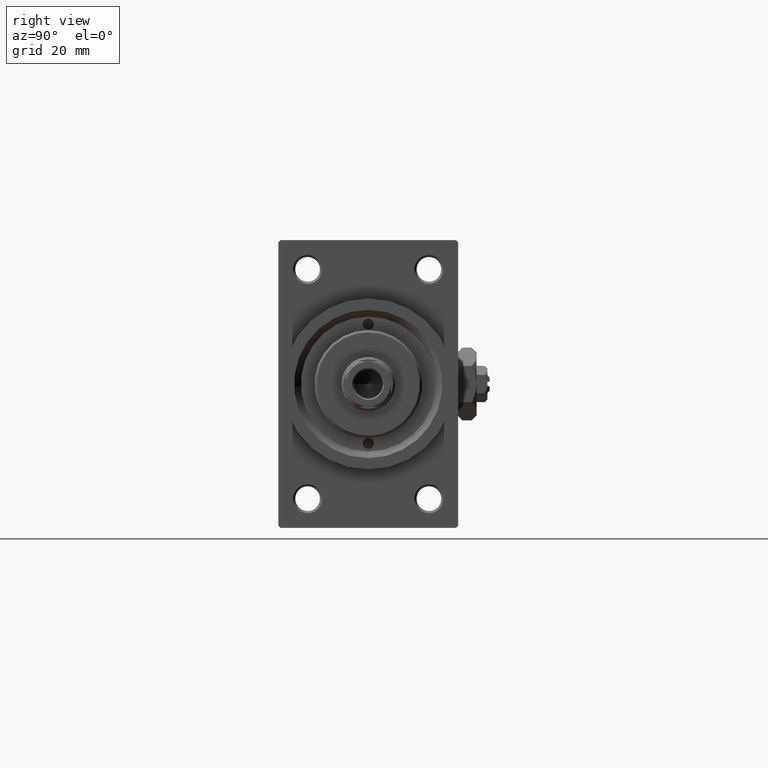
[diagram: clean part render]
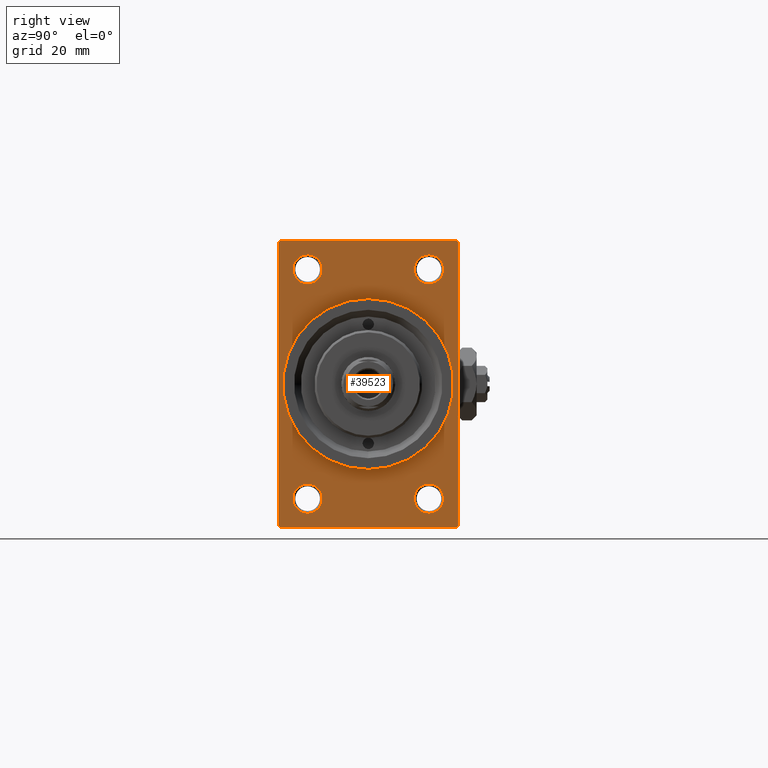
[diagram: same view with one face highlighted and labeled with its STEP entity id]
A machine part, right view. The second image highlights one B-rep face of the part: STEP entity #39523.
In plain terms, the highlighted planar face has unit normal (-1, 0, 0).
Its self-contained STEP definition (entity closure, byte-faithful):
#495 = CARTESIAN_POINT ( 'NONE',  ( 109.0000000000000142, -13.50000000000000533, -25.49999999999999645 ) ) ;
#780 = CARTESIAN_POINT ( 'NONE',  ( 109.0000000000000142, -20.00000000000000000, 31.49999999999997868 ) ) ;
#1149 = FACE_BOUND ( 'NONE', #3359, .T. ) ;
#1211 = DIRECTION ( 'NONE',  ( 0.000000000000000000, 0.000000000000000000, 1.000000000000000000 ) ) ;
#1253 = VERTEX_POINT ( 'NONE', #26808 ) ;
#1257 = DIRECTION ( 'NONE',  ( -0.000000000000000000, -0.7071067811865474617, -0.7071067811865474617 ) ) ;
#1570 = CARTESIAN_POINT ( 'NONE',  ( 109.0000000000000142, 20.00000000000000000, -31.49999999999998579 ) ) ;
#1646 = FACE_BOUND ( 'NONE', #1921, .T. ) ;
#1709 = ORIENTED_EDGE ( 'NONE', *, *, #5291, .T. ) ;
#1921 = EDGE_LOOP ( 'NONE', ( #14061, #37975 ) ) ;
#2263 = CARTESIAN_POINT ( 'NONE',  ( 109.0000000000000142, -13.50000000000000178, 28.75000000000000355 ) ) ;
#2301 = DIRECTION ( 'NONE',  ( 0.000000000000000000, -1.000000000000000000, -1.734723475976807094E-16 ) ) ;
#2542 = CARTESIAN_POINT ( 'NONE',  ( 109.0000000000000142, 20.00000000000000000, 32.00000000000000000 ) ) ;
#2822 = DIRECTION ( 'NONE',  ( 0.000000000000000000, 0.000000000000000000, -1.000000000000000000 ) ) ;
#3010 = VERTEX_POINT ( 'NONE', #25151 ) ;
#3359 = EDGE_LOOP ( 'NONE', ( #35891, #11153 ) ) ;
#3710 = VECTOR ( 'NONE', #24608, 1000.000000000000114 ) ;
#3742 = AXIS2_PLACEMENT_3D ( 'NONE', #9062, #31853, #46703 ) ;
#3777 = DIRECTION ( 'NONE',  ( -1.000000000000000000, -0.000000000000000000, -0.000000000000000000 ) ) ;
#4741 = AXIS2_PLACEMENT_3D ( 'NONE', #33901, #48736, #26740 ) ;
#4804 = EDGE_CURVE ( 'NONE', #37035, #16034, #15046, .T. ) ;
#5291 = EDGE_CURVE ( 'NONE', #42942, #32219, #40685, .T. ) ;
#5347 = VERTEX_POINT ( 'NONE', #44399 ) ;
#5597 = PLANE ( 'NONE',  #3742 ) ;
#5657 = AXIS2_PLACEMENT_3D ( 'NONE', #495, #45566, #1211 ) ;
#5681 = CIRCLE ( 'NONE', #29418, 19.00000000000000000 ) ;
#5807 = CARTESIAN_POINT ( 'NONE',  ( 109.0000000000000142, -20.00000000000000000, 31.99999999999999289 ) ) ;
#6150 = CARTESIAN_POINT ( 'NONE',  ( 109.0000000000000142, 20.00000000000000000, 31.49999999999998579 ) ) ;
#6286 = DIRECTION ( 'NONE',  ( 0.000000000000000000, 0.000000000000000000, -1.000000000000000000 ) ) ;
#6704 = CARTESIAN_POINT ( 'NONE',  ( 109.0000000000000142, 19.49999999999998579, 32.00000000000000000 ) ) ;
#7283 = AXIS2_PLACEMENT_3D ( 'NONE', #36686, #29501, #14139 ) ;
#7382 = ORIENTED_EDGE ( 'NONE', *, *, #9825, .T. ) ;
#7537 = CARTESIAN_POINT ( 'NONE',  ( 109.0000000000000142, -19.49999999999998579, 31.99999999999999289 ) ) ;
#7579 = DIRECTION ( 'NONE',  ( 0.000000000000000000, 0.000000000000000000, 1.000000000000000000 ) ) ;
#7994 = EDGE_CURVE ( 'NONE', #35808, #36756, #48987, .T. ) ;
#8006 = VERTEX_POINT ( 'NONE', #6704 ) ;
#9007 = VECTOR ( 'NONE', #21384, 1000.000000000000114 ) ;
#9062 = CARTESIAN_POINT ( 'NONE',  ( 109.0000000000000142, 0.000000000000000000, 0.000000000000000000 ) ) ;
#9259 = EDGE_CURVE ( 'NONE', #16360, #32219, #27095, .T. ) ;
#9376 = AXIS2_PLACEMENT_3D ( 'NONE', #44592, #37173, #25540 ) ;
#9781 = ORIENTED_EDGE ( 'NONE', *, *, #13012, .F. ) ;
#9798 = EDGE_LOOP ( 'NONE', ( #33362, #1709, #40323, #40582, #39390, #36260, #27277, #39252 ) ) ;
#9825 = EDGE_CURVE ( 'NONE', #13416, #28753, #18998, .T. ) ;
#9993 = CARTESIAN_POINT ( 'NONE',  ( 109.0000000000000142, 0.000000000000000000, 0.000000000000000000 ) ) ;
#10650 = AXIS2_PLACEMENT_3D ( 'NONE', #41174, #3777, #21615 ) ;
#11153 = ORIENTED_EDGE ( 'NONE', *, *, #33148, .T. ) ;
#11199 = CIRCLE ( 'NONE', #5657, 3.250000000000002665 ) ;
#12249 = EDGE_CURVE ( 'NONE', #1253, #40241, #11199, .T. ) ;
#12444 = VERTEX_POINT ( 'NONE', #18500 ) ;
#12933 = LINE ( 'NONE', #2542, #19384 ) ;
#13012 = EDGE_CURVE ( 'NONE', #23914, #12444, #5681, .T. ) ;
#13030 = CIRCLE ( 'NONE', #10650, 3.250000000000002665 ) ;
#13258 = FACE_BOUND ( 'NONE', #17785, .T. ) ;
#13292 = EDGE_CURVE ( 'NONE', #36756, #35808, #34165, .T. ) ;
#13416 = VERTEX_POINT ( 'NONE', #31938 ) ;
#13678 = DIRECTION ( 'NONE',  ( 0.000000000000000000, 0.000000000000000000, 1.000000000000000000 ) ) ;
#13943 = CARTESIAN_POINT ( 'NONE',  ( 109.0000000000000142, -19.49999999999998579, -32.00000000000000000 ) ) ;
#14061 = ORIENTED_EDGE ( 'NONE', *, *, #7994, .T. ) ;
#14139 = DIRECTION ( 'NONE',  ( 0.000000000000000000, 0.000000000000000000, 1.000000000000000000 ) ) ;
#14208 = VECTOR ( 'NONE', #33618, 1000.000000000000000 ) ;
#14618 = DIRECTION ( 'NONE',  ( -1.000000000000000000, -0.000000000000000000, -0.000000000000000000 ) ) ;
#15004 = DIRECTION ( 'NONE',  ( -1.000000000000000000, -0.000000000000000000, -0.000000000000000000 ) ) ;
#15046 = LINE ( 'NONE', #21976, #14208 ) ;
#16034 = VERTEX_POINT ( 'NONE', #39592 ) ;
#16360 = VERTEX_POINT ( 'NONE', #42995 ) ;
#16388 = DIRECTION ( 'NONE',  ( 0.000000000000000000, -1.000000000000000000, 0.000000000000000000 ) ) ;
#16905 = DIRECTION ( 'NONE',  ( -1.000000000000000000, -0.000000000000000000, -0.000000000000000000 ) ) ;
#17440 = LINE ( 'NONE', #5807, #18553 ) ;
#17785 = EDGE_LOOP ( 'NONE', ( #25182, #7382 ) ) ;
#17851 = CARTESIAN_POINT ( 'NONE',  ( 109.0000000000000142, -13.50000000000000178, 25.50000000000000355 ) ) ;
#18141 = LINE ( 'NONE', #25345, #9007 ) ;
#18500 = CARTESIAN_POINT ( 'NONE',  ( 109.0000000000000142, 2.326828918379970970E-15, -19.00000000000000000 ) ) ;
#18553 = VECTOR ( 'NONE', #2822, 1000.000000000000000 ) ;
#18998 = CIRCLE ( 'NONE', #4741, 3.250000000000002665 ) ;
#19384 = VECTOR ( 'NONE', #2301, 1000.000000000000000 ) ;
#20632 = DIRECTION ( 'NONE',  ( -1.000000000000000000, -0.000000000000000000, -0.000000000000000000 ) ) ;
#20869 = LINE ( 'NONE', #1570, #3710 ) ;
#21384 = DIRECTION ( 'NONE',  ( 0.000000000000000000, -0.7071067811865474617, 0.7071067811865474617 ) ) ;
#21615 = DIRECTION ( 'NONE',  ( 0.000000000000000000, 0.000000000000000000, 1.000000000000000000 ) ) ;
#21818 = EDGE_LOOP ( 'NONE', ( #9781, #31880 ) ) ;
#21976 = CARTESIAN_POINT ( 'NONE',  ( 109.0000000000000142, 20.00000000000000000, 32.00000000000000000 ) ) ;
#22039 = CIRCLE ( 'NONE', #41019, 3.249999999999961364 ) ;
#22675 = AXIS2_PLACEMENT_3D ( 'NONE', #28588, #20632, #39947 ) ;
#23395 = EDGE_CURVE ( 'NONE', #28753, #13416, #13030, .T. ) ;
#23914 = VERTEX_POINT ( 'NONE', #45819 ) ;
#24608 = DIRECTION ( 'NONE',  ( -0.000000000000000000, 0.7071067811865474617, 0.7071067811865474617 ) ) ;
#24896 = CIRCLE ( 'NONE', #33569, 3.249999999999961364 ) ;
#25116 = DIRECTION ( 'NONE',  ( 1.000000000000000000, 0.000000000000000000, 0.000000000000000000 ) ) ;
#25151 = CARTESIAN_POINT ( 'NONE',  ( 109.0000000000000142, 13.49999999999999822, 22.25000000000004263 ) ) ;
#25182 = ORIENTED_EDGE ( 'NONE', *, *, #23395, .T. ) ;
#25290 = AXIS2_PLACEMENT_3D ( 'NONE', #17851, #14618, #32716 ) ;
#25345 = CARTESIAN_POINT ( 'NONE',  ( 109.0000000000000142, 19.49999999999998579, 32.00000000000000000 ) ) ;
#25540 = DIRECTION ( 'NONE',  ( 0.000000000000000000, 0.000000000000000000, -1.000000000000000000 ) ) ;
#26527 = EDGE_CURVE ( 'NONE', #40241, #1253, #41647, .T. ) ;
#26740 = DIRECTION ( 'NONE',  ( 0.000000000000000000, 0.000000000000000000, 1.000000000000000000 ) ) ;
#26808 = CARTESIAN_POINT ( 'NONE',  ( 109.0000000000000142, -13.50000000000000533, -28.74999999999999645 ) ) ;
#26952 = CARTESIAN_POINT ( 'NONE',  ( 109.0000000000000142, 13.49999999999999822, -28.75000000000000000 ) ) ;
#27095 = LINE ( 'NONE', #27336, #34019 ) ;
#27277 = ORIENTED_EDGE ( 'NONE', *, *, #30782, .T. ) ;
#27336 = CARTESIAN_POINT ( 'NONE',  ( 109.0000000000000142, 20.00000000000000000, -32.00000000000000000 ) ) ;
#28588 = CARTESIAN_POINT ( 'NONE',  ( 109.0000000000000142, -13.50000000000000533, -25.49999999999999645 ) ) ;
#28753 = VERTEX_POINT ( 'NONE', #26952 ) ;
#29067 = DIRECTION ( 'NONE',  ( 0.000000000000000000, 0.7071067811865426878, -0.7071067811865524577 ) ) ;
#29140 = EDGE_CURVE ( 'NONE', #37035, #8006, #18141, .T. ) ;
#29418 = AXIS2_PLACEMENT_3D ( 'NONE', #9993, #25116, #6286 ) ;
#29501 = DIRECTION ( 'NONE',  ( -1.000000000000000000, -0.000000000000000000, -0.000000000000000000 ) ) ;
#29693 = EDGE_CURVE ( 'NONE', #5347, #42942, #17440, .T. ) ;
#29809 = ORIENTED_EDGE ( 'NONE', *, *, #12249, .T. ) ;
#30782 = EDGE_CURVE ( 'NONE', #8006, #42263, #12933, .T. ) ;
#30951 = CARTESIAN_POINT ( 'NONE',  ( 109.0000000000000142, -19.49999999999998579, -32.00000000000000000 ) ) ;
#30971 = EDGE_CURVE ( 'NONE', #42263, #5347, #34703, .T. ) ;
#31853 = DIRECTION ( 'NONE',  ( -1.000000000000000000, 0.000000000000000000, -0.000000000000000000 ) ) ;
#31880 = ORIENTED_EDGE ( 'NONE', *, *, #43814, .F. ) ;
#31938 = CARTESIAN_POINT ( 'NONE',  ( 109.0000000000000142, 13.49999999999999822, -22.24999999999999645 ) ) ;
#32035 = VECTOR ( 'NONE', #1257, 1000.000000000000114 ) ;
#32219 = VERTEX_POINT ( 'NONE', #30951 ) ;
#32427 = VECTOR ( 'NONE', #29067, 1000.000000000000000 ) ;
#32716 = DIRECTION ( 'NONE',  ( 0.000000000000000000, 0.000000000000000000, 1.000000000000000000 ) ) ;
#33148 = EDGE_CURVE ( 'NONE', #38296, #3010, #24896, .T. ) ;
#33321 = CARTESIAN_POINT ( 'NONE',  ( 109.0000000000000142, 13.49999999999999822, 25.50000000000000355 ) ) ;
#33362 = ORIENTED_EDGE ( 'NONE', *, *, #29693, .T. ) ;
#33569 = AXIS2_PLACEMENT_3D ( 'NONE', #33321, #15004, #7579 ) ;
#33618 = DIRECTION ( 'NONE',  ( 0.000000000000000000, 0.000000000000000000, -1.000000000000000000 ) ) ;
#33619 = CARTESIAN_POINT ( 'NONE',  ( 109.0000000000000142, -13.50000000000000533, -22.24999999999999289 ) ) ;
#33802 = EDGE_LOOP ( 'NONE', ( #29809, #40545 ) ) ;
#33901 = CARTESIAN_POINT ( 'NONE',  ( 109.0000000000000142, 13.49999999999999822, -25.50000000000000000 ) ) ;
#34019 = VECTOR ( 'NONE', #16388, 1000.000000000000000 ) ;
#34165 = CIRCLE ( 'NONE', #7283, 3.250000000000002665 ) ;
#34703 = LINE ( 'NONE', #780, #32035 ) ;
#35073 = FACE_BOUND ( 'NONE', #33802, .T. ) ;
#35808 = VERTEX_POINT ( 'NONE', #35925 ) ;
#35891 = ORIENTED_EDGE ( 'NONE', *, *, #46852, .T. ) ;
#35925 = CARTESIAN_POINT ( 'NONE',  ( 109.0000000000000142, -13.50000000000000178, 22.25000000000000000 ) ) ;
#36219 = CARTESIAN_POINT ( 'NONE',  ( 109.0000000000000142, 13.49999999999999822, 25.50000000000000355 ) ) ;
#36260 = ORIENTED_EDGE ( 'NONE', *, *, #29140, .T. ) ;
#36686 = CARTESIAN_POINT ( 'NONE',  ( 109.0000000000000142, -13.50000000000000178, 25.50000000000000355 ) ) ;
#36756 = VERTEX_POINT ( 'NONE', #2263 ) ;
#37035 = VERTEX_POINT ( 'NONE', #6150 ) ;
#37173 = DIRECTION ( 'NONE',  ( 1.000000000000000000, 0.000000000000000000, 0.000000000000000000 ) ) ;
#37634 = CARTESIAN_POINT ( 'NONE',  ( 109.0000000000000142, 13.49999999999999822, 28.74999999999996803 ) ) ;
#37975 = ORIENTED_EDGE ( 'NONE', *, *, #13292, .T. ) ;
#38296 = VERTEX_POINT ( 'NONE', #37634 ) ;
#38610 = CARTESIAN_POINT ( 'NONE',  ( 109.0000000000000142, -20.00000000000000000, -31.49999999999997868 ) ) ;
#38688 = EDGE_CURVE ( 'NONE', #16360, #16034, #20869, .T. ) ;
#39252 = ORIENTED_EDGE ( 'NONE', *, *, #30971, .T. ) ;
#39280 = FACE_OUTER_BOUND ( 'NONE', #9798, .T. ) ;
#39390 = ORIENTED_EDGE ( 'NONE', *, *, #4804, .F. ) ;
#39523 = ADVANCED_FACE ( 'NONE', ( #1646, #35073, #13258, #1149, #43233, #39280 ), #5597, .F. ) ;
#39592 = CARTESIAN_POINT ( 'NONE',  ( 109.0000000000000142, 20.00000000000000000, -31.49999999999998579 ) ) ;
#39947 = DIRECTION ( 'NONE',  ( 0.000000000000000000, 0.000000000000000000, 1.000000000000000000 ) ) ;
#40241 = VERTEX_POINT ( 'NONE', #33619 ) ;
#40323 = ORIENTED_EDGE ( 'NONE', *, *, #9259, .F. ) ;
#40545 = ORIENTED_EDGE ( 'NONE', *, *, #26527, .T. ) ;
#40582 = ORIENTED_EDGE ( 'NONE', *, *, #38688, .T. ) ;
#40685 = LINE ( 'NONE', #13943, #32427 ) ;
#41019 = AXIS2_PLACEMENT_3D ( 'NONE', #36219, #16905, #13678 ) ;
#41174 = CARTESIAN_POINT ( 'NONE',  ( 109.0000000000000142, 13.49999999999999822, -25.50000000000000000 ) ) ;
#41647 = CIRCLE ( 'NONE', #22675, 3.250000000000002665 ) ;
#42263 = VERTEX_POINT ( 'NONE', #7537 ) ;
#42942 = VERTEX_POINT ( 'NONE', #38610 ) ;
#42995 = CARTESIAN_POINT ( 'NONE',  ( 109.0000000000000142, 19.49999999999998579, -32.00000000000000000 ) ) ;
#43233 = FACE_BOUND ( 'NONE', #21818, .T. ) ;
#43814 = EDGE_CURVE ( 'NONE', #12444, #23914, #47346, .T. ) ;
#44399 = CARTESIAN_POINT ( 'NONE',  ( 109.0000000000000142, -20.00000000000000000, 31.49999999999997868 ) ) ;
#44592 = CARTESIAN_POINT ( 'NONE',  ( 109.0000000000000142, 0.000000000000000000, 0.000000000000000000 ) ) ;
#45566 = DIRECTION ( 'NONE',  ( -1.000000000000000000, -0.000000000000000000, -0.000000000000000000 ) ) ;
#45819 = CARTESIAN_POINT ( 'NONE',  ( 109.0000000000000142, 0.000000000000000000, 19.00000000000000000 ) ) ;
#46703 = DIRECTION ( 'NONE',  ( -0.000000000000000000, 0.000000000000000000, 1.000000000000000000 ) ) ;
#46852 = EDGE_CURVE ( 'NONE', #3010, #38296, #22039, .T. ) ;
#47346 = CIRCLE ( 'NONE', #9376, 19.00000000000000000 ) ;
#48736 = DIRECTION ( 'NONE',  ( -1.000000000000000000, -0.000000000000000000, -0.000000000000000000 ) ) ;
#48987 = CIRCLE ( 'NONE', #25290, 3.250000000000002665 ) ;